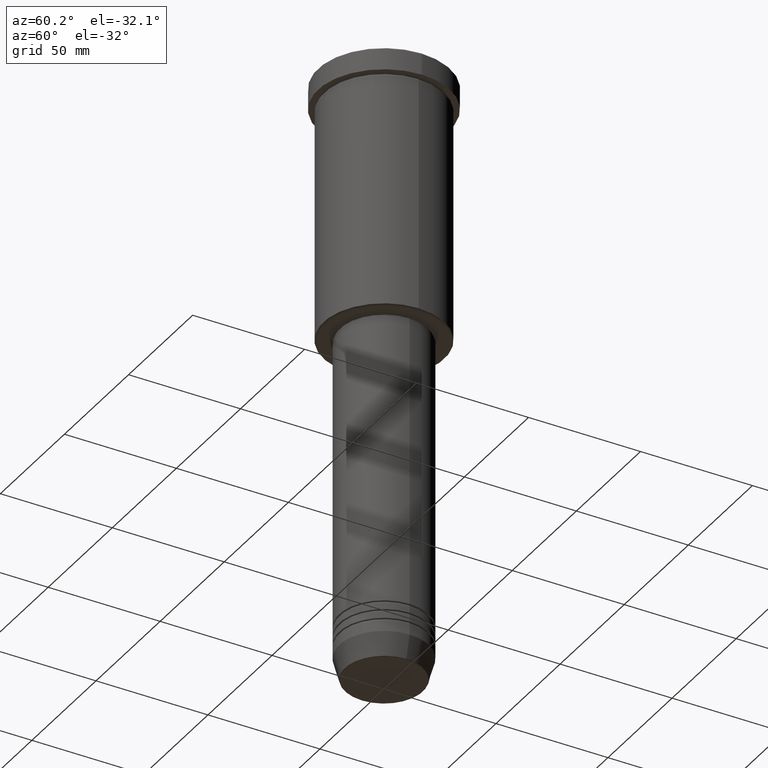
[diagram: clean part render]
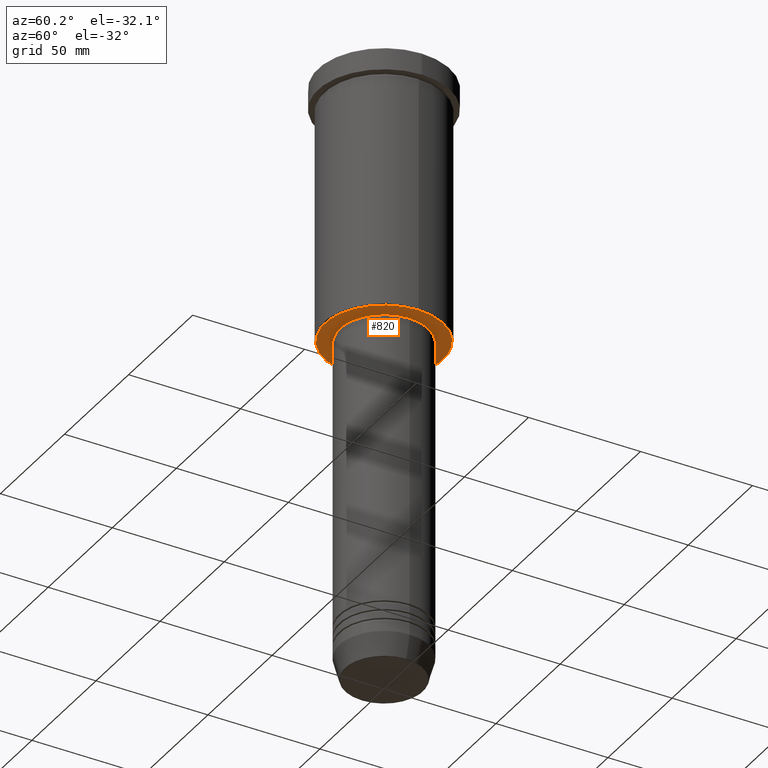
[diagram: same view with one face highlighted and labeled with its STEP entity id]
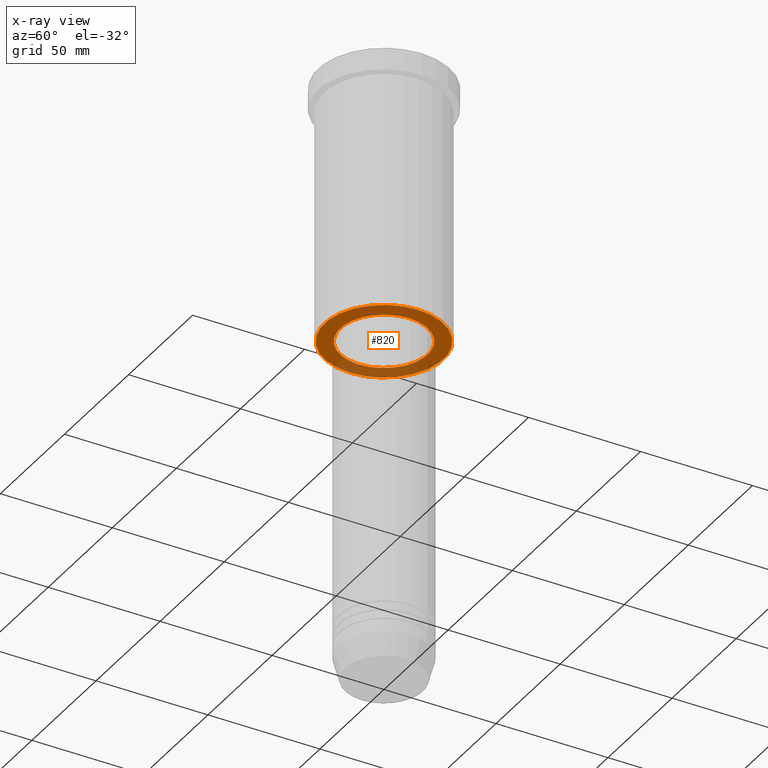
[diagram: x-ray of the same camera — body ghosted, the highlighted face saturated]
A machine part, auxiliary view. The second image highlights one B-rep face of the part: STEP entity #820.
The next image is the same camera in x-ray: the body ghosted, the highlighted face saturated — about 27% of this face is hidden behind the body in this view.
In plain terms, the highlighted planar face has unit normal (0, 0, -1).
Its self-contained STEP definition (entity closure, byte-faithful):
#58 = CARTESIAN_POINT ( 'NONE',  ( 0.000000000000000000, 0.000000000000000000, -116.0000000000000142 ) ) ;
#70 = EDGE_CURVE ( 'NONE', #1000, #993, #446, .T. ) ;
#90 = DIRECTION ( 'NONE',  ( 0.000000000000000000, 0.000000000000000000, -1.000000000000000000 ) ) ;
#92 = CIRCLE ( 'NONE', #1160, 19.50000000000000000 ) ;
#102 = CIRCLE ( 'NONE', #440, 19.50000000000000000 ) ;
#119 = ORIENTED_EDGE ( 'NONE', *, *, #159, .T. ) ;
#141 = CARTESIAN_POINT ( 'NONE',  ( -26.49999999999996803, 3.275930187719167974E-15, -116.0000000000000142 ) ) ;
#150 = DIRECTION ( 'NONE',  ( 0.000000000000000000, 0.000000000000000000, -1.000000000000000000 ) ) ;
#156 = AXIS2_PLACEMENT_3D ( 'NONE', #247, #90, #434 ) ;
#159 = EDGE_CURVE ( 'NONE', #821, #937, #102, .T. ) ;
#183 = FACE_BOUND ( 'NONE', #610, .T. ) ;
#230 = EDGE_CURVE ( 'NONE', #993, #1000, #386, .T. ) ;
#247 = CARTESIAN_POINT ( 'NONE',  ( 0.000000000000000000, 0.000000000000000000, -116.0000000000000142 ) ) ;
#310 = CARTESIAN_POINT ( 'NONE',  ( 19.50000000000000000, 0.000000000000000000, -116.0000000000000142 ) ) ;
#314 = DIRECTION ( 'NONE',  ( -1.000000000000000000, 0.000000000000000000, 0.000000000000000000 ) ) ;
#351 = DIRECTION ( 'NONE',  ( 1.000000000000000000, 0.000000000000000000, 0.000000000000000000 ) ) ;
#386 = CIRCLE ( 'NONE', #156, 26.49999999999996803 ) ;
#390 = CARTESIAN_POINT ( 'NONE',  ( 26.49999999999996803, 0.000000000000000000, -116.0000000000000142 ) ) ;
#407 = EDGE_LOOP ( 'NONE', ( #625, #461 ) ) ;
#432 = AXIS2_PLACEMENT_3D ( 'NONE', #636, #1015, #933 ) ;
#434 = DIRECTION ( 'NONE',  ( -1.000000000000000000, 0.000000000000000000, 0.000000000000000000 ) ) ;
#440 = AXIS2_PLACEMENT_3D ( 'NONE', #896, #1073, #1084 ) ;
#446 = CIRCLE ( 'NONE', #597, 26.49999999999996803 ) ;
#461 = ORIENTED_EDGE ( 'NONE', *, *, #70, .T. ) ;
#491 = ORIENTED_EDGE ( 'NONE', *, *, #1066, .T. ) ;
#551 = FACE_OUTER_BOUND ( 'NONE', #407, .T. ) ;
#597 = AXIS2_PLACEMENT_3D ( 'NONE', #58, #150, #314 ) ;
#602 = DIRECTION ( 'NONE',  ( -0.000000000000000000, -0.000000000000000000, 1.000000000000000000 ) ) ;
#610 = EDGE_LOOP ( 'NONE', ( #491, #119 ) ) ;
#625 = ORIENTED_EDGE ( 'NONE', *, *, #230, .T. ) ;
#629 = PLANE ( 'NONE',  #432 ) ;
#636 = CARTESIAN_POINT ( 'NONE',  ( 0.000000000000000000, 27.00000000000000355, -116.0000000000000142 ) ) ;
#782 = CARTESIAN_POINT ( 'NONE',  ( 0.000000000000000000, 0.000000000000000000, -116.0000000000000142 ) ) ;
#820 = ADVANCED_FACE ( 'NONE', ( #551, #183 ), #629, .T. ) ;
#821 = VERTEX_POINT ( 'NONE', #997 ) ;
#896 = CARTESIAN_POINT ( 'NONE',  ( 0.000000000000000000, 0.000000000000000000, -116.0000000000000142 ) ) ;
#933 = DIRECTION ( 'NONE',  ( -1.000000000000000000, 0.000000000000000000, -0.000000000000000000 ) ) ;
#937 = VERTEX_POINT ( 'NONE', #310 ) ;
#993 = VERTEX_POINT ( 'NONE', #390 ) ;
#997 = CARTESIAN_POINT ( 'NONE',  ( -19.50000000000000000, 2.388061258337338939E-15, -116.0000000000000142 ) ) ;
#1000 = VERTEX_POINT ( 'NONE', #141 ) ;
#1015 = DIRECTION ( 'NONE',  ( 0.000000000000000000, 0.000000000000000000, -1.000000000000000000 ) ) ;
#1066 = EDGE_CURVE ( 'NONE', #937, #821, #92, .T. ) ;
#1073 = DIRECTION ( 'NONE',  ( -0.000000000000000000, -0.000000000000000000, 1.000000000000000000 ) ) ;
#1084 = DIRECTION ( 'NONE',  ( 1.000000000000000000, 0.000000000000000000, 0.000000000000000000 ) ) ;
#1160 = AXIS2_PLACEMENT_3D ( 'NONE', #782, #602, #351 ) ;